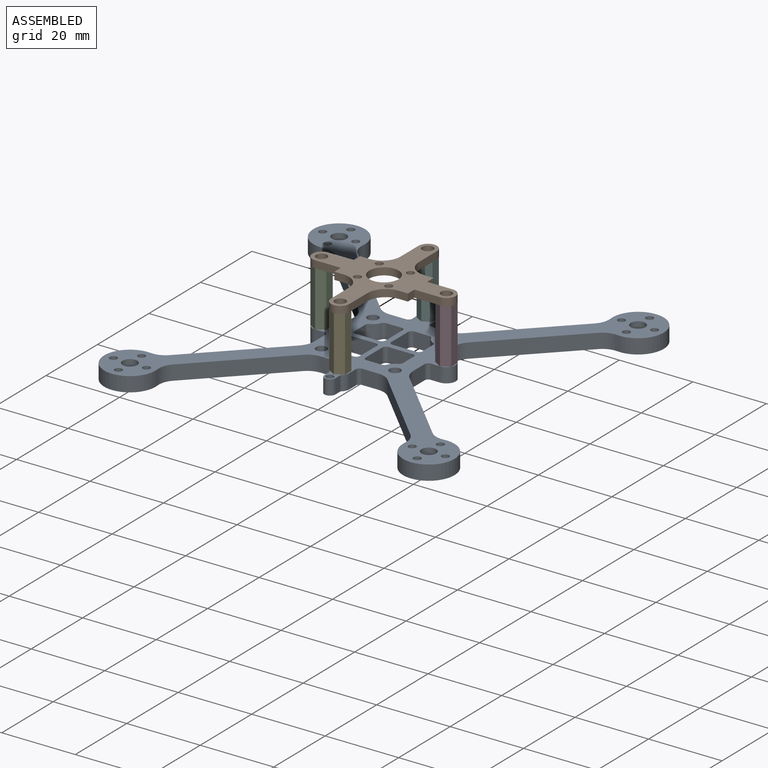
[diagram: assembled view]
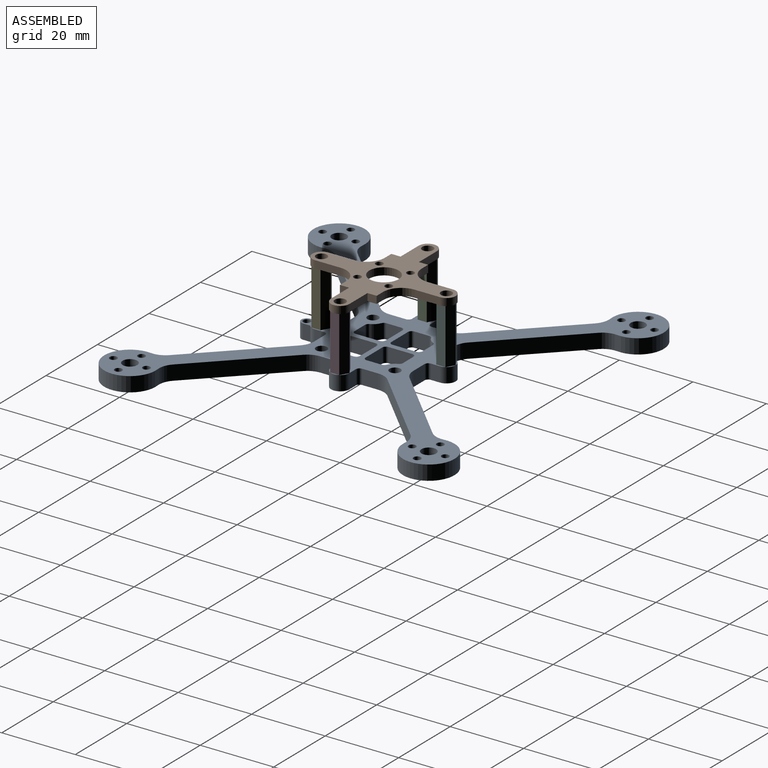
[diagram: assembled view, second angle]
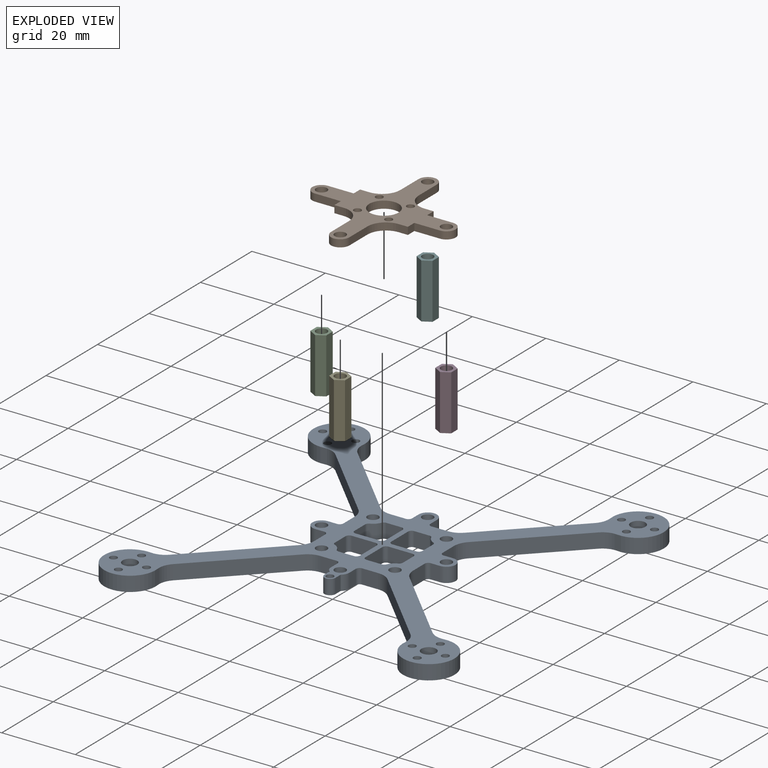
[diagram: exploded view]
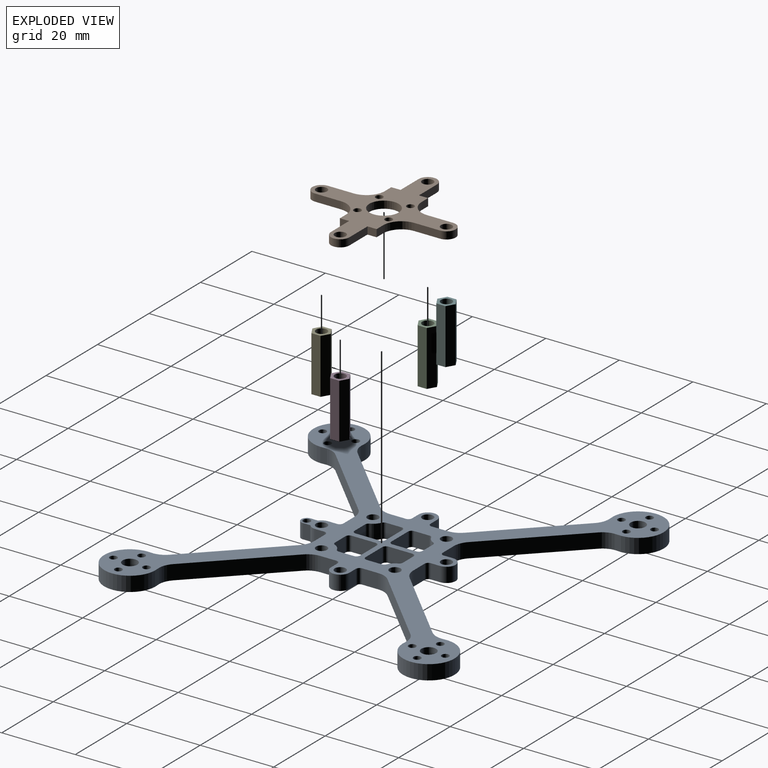
[diagram: exploded view, second angle]
ASSEMBLY  parts=6 mates=5
PART A: 131 faces, bbox 95.3x95.3x4 mm
  f0: plane 20.84x20.84mm, normal (-0.71,0.71,0), area 117.9mm2, adj f85,f86,f87,f90
  f1: plane 4.39x4mm, normal (0,1,0), area 17.6mm2, adj f85,f86,f87,f123
  f2: plane 4x2.5mm, normal (1,0,0), area 10mm2, adj f3,f85,f86,f123
  f3: cylinder r=2.5mm len=5mm, axis (0,0,-1), area 31.4mm2, adj f2,f4,f85,f86
  f4: plane 4x2.5mm, normal (-1,0,0), area 10mm2, adj f3,f85,f86,f124
  f5: plane 4.39x4mm, normal (0,1,0), area 17.6mm2, adj f85,f86,f88,f124
  f6: plane 20.84x20.84mm, normal (0.71,0.71,0), area 117.9mm2, adj f85,f86,f88,f98
  f7: cylinder r=7mm len=14mm, axis (0,0,-1), area 138.1mm2, adj f85,f86,f92,f98
  f8: plane 20.84x20.84mm, normal (-0.71,-0.71,0), area 117.9mm2, adj f85,f86,f92,f93
  f9: plane 4.39x4mm, normal (-1,0,0), area 17.6mm2, adj f85,f86,f93,f127
  f10: plane 4x2.5mm, normal (0,1,0), area 10mm2, adj f11,f85,f86,f127
  f11: cylinder r=2.5mm len=5mm, axis (0,0,-1), area 31.4mm2, adj f10,f12,f85,f86
  f12: plane 4x2.5mm, normal (0,-1,0), area 10mm2, adj f11,f85,f86,f128
  f13: plane 4.39x4mm, normal (-1,0,0), area 17.6mm2, adj f85,f86,f96,f128
  f14: plane 20.84x20.84mm, normal (-0.71,0.71,0), area 117.9mm2, adj f85,f86,f94,f96
  f15: cylinder r=7mm len=14mm, axis (0,0,-1), area 138.1mm2, adj f85,f86,f94,f95
  f16: plane 20.84x20.84mm, normal (0.71,-0.71,0), area 117.9mm2, adj f85,f86,f95,f102
  f17: plane 4.39x4mm, normal (0,-1,0), area 17.6mm2, adj f85,f86,f102,f129
  f18: plane 4x2.5mm, normal (-1,0,0), area 10mm2, adj f19,f85,f86,f129
  f19: cylinder r=2.5mm len=4mm, axis (0,0,-1), area 9.3mm2, adj f18,f20,f85,f86
  f20: plane 4x2mm, normal (-1,0,0), area 8mm2, adj f19,f21,f85,f86
  f21: cylinder r=1.5mm len=4mm, axis (0,0,-1), area 18.9mm2, adj f20,f22,f85,f86
  f22: plane 4x2mm, normal (1,0,0), area 8mm2, adj f21,f23,f85,f86
  f23: cylinder r=2.5mm len=4mm, axis (0,0,-1), area 9.3mm2, adj f22,f24,f85,f86
  f24: plane 4x2.5mm, normal (1,0,0), area 10mm2, adj f23,f85,f86,f130
  f25: plane 4.39x4mm, normal (0,-1,0), area 17.6mm2, adj f85,f86,f99,f130
  f26: plane 20.84x20.84mm, normal (-0.71,-0.71,0), area 117.9mm2, adj f85,f86,f99,f100
  f27: cylinder r=7mm len=14mm, axis (0,0,-1), area 138.1mm2, adj f85,f86,f100,f101
  f28: plane 20.84x20.84mm, normal (0.71,0.71,0), area 117.9mm2, adj f85,f86,f97,f101
  f29: plane 4.39x4mm, normal (1,0,0), area 17.6mm2, adj f85,f86,f97,f126
  f30: plane 4x2.5mm, normal (0,-1,0), area 10mm2, adj f31,f85,f86,f126
  f31: cylinder r=2.5mm len=5mm, axis (0,0,-1), area 31.4mm2, adj f30,f32,f85,f86
  f32: plane 4x2.5mm, normal (0,1,0), area 10mm2, adj f31,f85,f86,f125
  f33: plane 4.39x4mm, normal (1,0,0), area 17.6mm2, adj f85,f86,f91,f125
  f34: plane 20.84x20.84mm, normal (0.71,-0.71,0), area 117.9mm2, adj f85,f86,f89,f91
  f35: plane 4.1x4mm, normal (0,1,0), area 16.4mm2, adj f85,f86,f109,f111
  f36: plane 6.5x4mm, normal (1,0,0), area 26mm2, adj f85,f86,f109,f118
  f37: plane 6.5x4mm, normal (0,-1,0), area 26mm2, adj f85,f86,f112,f118
  f38: plane 4.1x4mm, normal (-1,0,0), area 16.4mm2, adj f85,f86,f112,f114
  f39: plane 4.1x4mm, normal (1,0,0), area 16.4mm2, adj f85,f86,f105,f107
  f40: plane 6.5x4mm, normal (0,-1,0), area 26mm2, adj f85,f86,f105,f117
  f41: plane 6.5x4mm, normal (-1,0,0), area 26mm2, adj f85,f86,f108,f117
  f42: plane 4.1x4mm, normal (0,1,0), area 16.4mm2, adj f85,f86,f108,f110
  f43: plane 4.1x4mm, normal (0,-1,0), area 16.4mm2, adj f85,f86,f103,f120
  f44: plane 6.5x4mm, normal (-1,0,0), area 26mm2, adj f85,f86,f103,f115
  f45: plane 6.5x4mm, normal (0,1,0), area 26mm2, adj f85,f86,f106,f115
  f46: plane 4.1x4mm, normal (1,0,0), area 16.4mm2, adj f85,f86,f106,f119
  f47: plane 6.5x4mm, normal (1,0,0), area 26mm2, adj f85,f86,f104,f116
  f48: plane 4.1x4mm, normal (0,-1,0), area 16.4mm2, adj f85,f86,f104,f122
  f49: cylinder r=3.5mm len=4mm, axis (0,0,-1), area 10.8mm2, adj f85,f86,f121,f122
  f50: plane 4.1x4mm, normal (-1,0,0), area 16.4mm2, adj f85,f86,f113,f121
  f51: cylinder r=1.5mm len=4mm, axis (0,0,-1), area 37.7mm2, adj f85,f86
  f52: cylinder r=1.5mm len=4mm, axis (0,0,-1), area 37.7mm2, adj f85,f86
  f53: cylinder r=1mm len=4mm, axis (0,0,-1), area 25.1mm2, adj f85,f86
  f54: cylinder r=1mm len=4mm, axis (0,0,-1), area 25.1mm2, adj f85,f86
  f55: cylinder r=2mm len=4mm, axis (0,0,-1), area 50.3mm2, adj f85,f86
  f56: cylinder r=1mm len=4mm, axis (0,0,-1), area 25.1mm2, adj f85,f86
  f57: cylinder r=1mm len=4mm, axis (0,0,-1), area 25.1mm2, adj f85,f86
  f58: cylinder r=1mm len=4mm, axis (0,0,-1), area 25.1mm2, adj f85,f86
  f59: cylinder r=1mm len=4mm, axis (0,0,-1), area 25.1mm2, adj f85,f86
  f60: cylinder r=2mm len=4mm, axis (0,0,-1), area 50.3mm2, adj f85,f86
  f61: cylinder r=1mm len=4mm, axis (0,0,-1), area 25.1mm2, adj f85,f86
  f62: cylinder r=1mm len=4mm, axis (0,0,-1), area 25.1mm2, adj f85,f86
  f63: cylinder r=1mm len=4mm, axis (0,0,-1), area 25.1mm2, adj f85,f86
  f64: cylinder r=1mm len=4mm, axis (0,0,-1), area 25.1mm2, adj f85,f86
  f65: cylinder r=1mm len=4mm, axis (0,0,-1), area 25.1mm2, adj f85,f86
  f66: cylinder r=2mm len=4mm, axis (0,0,-1), area 50.3mm2, adj f85,f86
  f67: cylinder r=1mm len=4mm, axis (0,0,-1), area 25.1mm2, adj f85,f86
  f68: cylinder r=1mm len=4mm, axis (0,0,-1), area 25.1mm2, adj f85,f86
  f69: cylinder r=1.5mm len=4mm, axis (0,0,-1), area 37.7mm2, adj f85,f86
  f70: cylinder r=1mm len=4mm, axis (0,0,-1), area 25.1mm2, adj f85,f86
  f71: cylinder r=1mm len=4mm, axis (0,0,-1), area 25.1mm2, adj f85,f86
  f72: cylinder r=2mm len=4mm, axis (0,0,-1), area 50.3mm2, adj f85,f86
  f73: cylinder r=1mm len=4mm, axis (0,0,-1), area 25.1mm2, adj f85,f86
  f74: cylinder r=1mm len=4mm, axis (0,0,-1), area 25.1mm2, adj f85,f86
  f75: cylinder r=7mm len=14mm, axis (0,0,-1), area 138.1mm2, adj f85,f86,f89,f90
  f76: cylinder r=1.5mm len=4mm, axis (0,0,-1), area 37.7mm2, adj f85,f86
  f77: cylinder r=1.5mm len=4mm, axis (0,0,-1), area 37.7mm2, adj f85,f86
  f78: cylinder r=1.5mm len=4mm, axis (0,0,-1), area 37.7mm2, adj f85,f86
  f79: cylinder r=1.5mm len=4mm, axis (0,0,-1), area 37.7mm2, adj f85,f86
  f80: cylinder r=3.5mm len=4mm, axis (0,0,-1), area 10.8mm2, adj f85,f86,f111,f114
  f81: cylinder r=3.5mm len=4mm, axis (0,0,-1), area 10.8mm2, adj f85,f86,f107,f110
  f82: cylinder r=3.5mm len=4mm, axis (0,0,-1), area 10.8mm2, adj f85,f86,f119,f120
  f83: plane 6.5x4mm, normal (0,1,0), area 26mm2, adj f85,f86,f113,f116
  f84: cylinder r=1.5mm len=4mm, axis (0,0,-1), area 37.7mm2, adj f85,f86
  f85: plane 95.32x95.32mm, normal (0,0,1), area 1707.5mm2, adj f0,f1,f2,f3,f4,f5,f6,f7
  f86: plane 95.32x95.32mm, normal (0,0,-1), area 1707.5mm2, adj f0,f1,f2,f3,f4,f5,f6,f7
  f87: cylinder r=5mm len=4mm, axis (0,0,-1), area 15.7mm2, adj f0,f1,f85,f86
  f88: cylinder r=5mm len=4mm, axis (0,0,1), area 15.7mm2, adj f5,f6,f85,f86
  f89: cylinder r=5mm len=4.09mm, axis (0,0,-1), area 17.9mm2, adj f34,f75,f85,f86
  f90: cylinder r=5mm len=4.09mm, axis (0,0,-1), area 17.9mm2, adj f0,f75,f85,f86
  f91: cylinder r=5mm len=4mm, axis (0,0,1), area 15.7mm2, adj f33,f34,f85,f86
  f92: cylinder r=5mm len=4.09mm, axis (0,0,-1), area 17.9mm2, adj f7,f8,f85,f86
  f93: cylinder r=5mm len=4mm, axis (0,0,1), area 15.7mm2, adj f8,f9,f85,f86
  f94: cylinder r=5mm len=4.09mm, axis (0,0,-1), area 17.9mm2, adj f14,f15,f85,f86
  f95: cylinder r=5mm len=4.09mm, axis (0,0,-1), area 17.9mm2, adj f15,f16,f85,f86
  f96: cylinder r=5mm len=4mm, axis (0,0,1), area 15.7mm2, adj f13,f14,f85,f86
  f97: cylinder r=5mm len=4mm, axis (0,0,1), area 15.7mm2, adj f28,f29,f85,f86
  f98: cylinder r=5mm len=4.09mm, axis (0,0,-1), area 17.9mm2, adj f6,f7,f85,f86
  f99: cylinder r=5mm len=4mm, axis (0,0,1), area 15.7mm2, adj f25,f26,f85,f86
  f100: cylinder r=5mm len=4.09mm, axis (0,0,-1), area 17.9mm2, adj f26,f27,f85,f86
  f101: cylinder r=5mm len=4.09mm, axis (0,0,-1), area 17.9mm2, adj f27,f28,f85,f86
  f102: cylinder r=5mm len=4mm, axis (0,0,-1), area 15.7mm2, adj f16,f17,f85,f86
  f103: cylinder r=1mm len=4mm, axis (0,0,1), area 6.3mm2, adj f43,f44,f85,f86
  f104: cylinder r=1mm len=4mm, axis (0,0,-1), area 6.3mm2, adj f47,f48,f85,f86
  f105: cylinder r=1mm len=4mm, axis (0,0,1), area 6.3mm2, adj f39,f40,f85,f86
  f106: cylinder r=1mm len=4mm, axis (0,0,-1), area 6.3mm2, adj f45,f46,f85,f86
  f107: cylinder r=1mm len=4mm, axis (0,0,-1), area 4.7mm2, adj f39,f81,f85,f86
  f108: cylinder r=1mm len=4mm, axis (0,0,-1), area 6.3mm2, adj f41,f42,f85,f86
  f109: cylinder r=1mm len=4mm, axis (0,0,1), area 6.3mm2, adj f35,f36,f85,f86
  f110: cylinder r=1mm len=4mm, axis (0,0,-1), area 4.7mm2, adj f42,f81,f85,f86
  f111: cylinder r=1mm len=4mm, axis (0,0,-1), area 4.7mm2, adj f35,f80,f85,f86
  f112: cylinder r=1mm len=4mm, axis (0,0,-1), area 6.3mm2, adj f37,f38,f85,f86
  f113: cylinder r=1mm len=4mm, axis (0,0,1), area 6.3mm2, adj f50,f83,f85,f86
  f114: cylinder r=1mm len=4mm, axis (0,0,-1), area 4.7mm2, adj f38,f80,f85,f86
  f115: cylinder r=1mm len=4mm, axis (0,0,-1), area 6.3mm2, adj f44,f45,f85,f86
  f116: cylinder r=1mm len=4mm, axis (0,0,1), area 6.3mm2, adj f47,f83,f85,f86
  f117: cylinder r=1mm len=4mm, axis (0,0,1), area 6.3mm2, adj f40,f41,f85,f86
  f118: cylinder r=1mm len=4mm, axis (0,0,-1), area 6.3mm2, adj f36,f37,f85,f86
  f119: cylinder r=1mm len=4mm, axis (0,0,-1), area 4.7mm2, adj f46,f82,f85,f86
  f120: cylinder r=1mm len=4mm, axis (0,0,-1), area 4.7mm2, adj f43,f82,f85,f86
  f121: cylinder r=1mm len=4mm, axis (0,0,-1), area 4.7mm2, adj f49,f50,f85,f86
  f122: cylinder r=1mm len=4mm, axis (0,0,-1), area 4.7mm2, adj f48,f49,f85,f86
  f123: cylinder r=1mm len=4mm, axis (0,0,1), area 6.3mm2, adj f1,f2,f85,f86
  f124: cylinder r=1mm len=4mm, axis (0,0,-1), area 6.3mm2, adj f4,f5,f85,f86
  f125: cylinder r=1mm len=4mm, axis (0,0,-1), area 6.3mm2, adj f32,f33,f85,f86
  f126: cylinder r=1mm len=4mm, axis (0,0,1), area 6.3mm2, adj f29,f30,f85,f86
  f127: cylinder r=1mm len=4mm, axis (0,0,-1), area 6.3mm2, adj f9,f10,f85,f86
  f128: cylinder r=1mm len=4mm, axis (0,0,1), area 6.3mm2, adj f12,f13,f85,f86
  f129: cylinder r=1mm len=4mm, axis (0,0,-1), area 6.3mm2, adj f17,f18,f85,f86
  f130: cylinder r=1mm len=4mm, axis (0,0,1), area 6.3mm2, adj f24,f25,f85,f86
PART B: 35 faces, bbox 39x39x2 mm
  f0: plane 7x2mm, normal (1,0,0), area 14mm2, adj f1,f31,f33,f34
  f1: cylinder r=2.5mm len=5mm, axis (0,0,-1), area 15.7mm2, adj f0,f2,f33,f34
  f2: plane 7x2mm, normal (-1,0,0), area 14mm2, adj f1,f3,f33,f34
  f3: cylinder r=5mm len=5mm, axis (0,0,-1), area 15.7mm2, adj f2,f4,f33,f34
  f4: plane 2.5x2mm, normal (0,1,0), area 5mm2, adj f3,f5,f33,f34
  f5: plane 2.5x2mm, normal (-1,0,0), area 5mm2, adj f4,f6,f33,f34
  f6: plane 7x2mm, normal (0,1,0), area 14mm2, adj f5,f7,f33,f34
  f7: cylinder r=2.5mm len=5mm, axis (0,0,-1), area 15.7mm2, adj f6,f8,f33,f34
  f8: plane 7x2mm, normal (0,-1,0), area 14mm2, adj f7,f9,f33,f34
  f9: plane 2.5x2mm, normal (-1,0,0), area 5mm2, adj f8,f10,f33,f34
  f10: plane 2.5x2mm, normal (0,-1,0), area 5mm2, adj f9,f11,f33,f34
  f11: cylinder r=5mm len=5mm, axis (0,0,-1), area 15.7mm2, adj f10,f12,f33,f34
  f12: plane 7x2mm, normal (-1,0,0), area 14mm2, adj f11,f13,f33,f34
  f13: cylinder r=2.5mm len=5mm, axis (0,0,-1), area 15.7mm2, adj f12,f14,f33,f34
  f14: plane 7x2mm, normal (1,0,0), area 14mm2, adj f13,f15,f33,f34
  f15: cylinder r=5mm len=5mm, axis (0,0,-1), area 15.7mm2, adj f14,f16,f33,f34
  f16: plane 2.5x2mm, normal (0,-1,0), area 5mm2, adj f15,f17,f33,f34
  f17: plane 2.5x2mm, normal (1,0,0), area 5mm2, adj f16,f18,f33,f34
  f18: plane 7x2mm, normal (0,-1,0), area 14mm2, adj f17,f19,f33,f34
  f19: cylinder r=2.5mm len=5mm, axis (0,0,-1), area 15.7mm2, adj f18,f20,f33,f34
  f20: plane 7x2mm, normal (0,1,0), area 14mm2, adj f19,f21,f33,f34
  f21: plane 2.5x2mm, normal (1,0,0), area 5mm2, adj f20,f22,f33,f34
  f22: plane 2.5x2mm, normal (0,1,0), area 5mm2, adj f21,f31,f33,f34
  f23: cylinder r=1mm len=2mm, axis (0,0,-1), area 12.6mm2, adj f33,f34
  f24: cylinder r=1mm len=2mm, axis (0,0,-1), area 12.6mm2, adj f33,f34
  f25: cylinder r=1mm len=2mm, axis (0,0,-1), area 12.6mm2, adj f33,f34
  f26: cylinder r=4mm len=8mm, axis (0,0,-1), area 50.3mm2, adj f33,f34
  f27: cylinder r=1.5mm len=3mm, axis (0,0,-1), area 18.8mm2, adj f33,f34
  f28: cylinder r=1.5mm len=3mm, axis (0,0,-1), area 18.8mm2, adj f33,f34
  f29: cylinder r=1.5mm len=3mm, axis (0,0,-1), area 18.8mm2, adj f33,f34
  f30: cylinder r=1.5mm len=3mm, axis (0,0,-1), area 18.8mm2, adj f33,f34
  f31: cylinder r=5mm len=5mm, axis (0,0,-1), area 15.7mm2, adj f0,f22,f33,f34
  f32: cylinder r=1mm len=2mm, axis (0,0,-1), area 12.6mm2, adj f33,f34
  f33: plane 39x39mm, normal (0,0,1), area 359.6mm2, adj f0,f1,f2,f3,f4,f5,f6,f7
  f34: plane 39x39mm, normal (0,0,-1), area 359.6mm2, adj f0,f1,f2,f3,f4,f5,f6,f7
PART C: 9 faces, bbox 4.3x5x15 mm
  f0: plane 15x2.5mm, normal (-1,0,0), area 37.5mm2, adj f1,f5,f7,f8
  f1: plane 15x2.17mm, normal (-0.5,-0.87,0), area 37.5mm2, adj f0,f2,f7,f8
  f2: plane 15x2.17mm, normal (0.5,-0.87,0), area 37.5mm2, adj f1,f3,f7,f8
  f3: plane 15x2.5mm, normal (1,0,0), area 37.5mm2, adj f2,f4,f7,f8
  f4: plane 15x2.17mm, normal (0.5,0.87,0), area 37.5mm2, adj f3,f5,f7,f8
  f5: plane 15x2.17mm, normal (-0.5,0.87,0), area 37.5mm2, adj f0,f4,f7,f8
  f6: cylinder r=1.5mm len=15mm, axis (0,0,-1), area 141.4mm2, adj f7,f8
  f7: plane 5x4.33mm, normal (0,0,1), area 9.2mm2, adj f0,f1,f2,f3,f4,f5,f6
  f8: plane 5x4.33mm, normal (0,0,-1), area 9.2mm2, adj f0,f1,f2,f3,f4,f5,f6
PART D: same geometry as C
PART E: same geometry as C
PART F: same geometry as C
PLACE A t=(0,0,-19)mm
PLACE B at identity
PLACE C t=(-17,0,-15)mm
PLACE D t=(17,0,-15)mm
PLACE E t=(0,-17,-15)mm
PLACE F t=(0,17,-15)mm
MATE fastened C.f6 <-> B.f7  axis (0,0,-1) through (-17,0,0)mm
MATE fastened A.f19 <-> E.f6  axis (0,0,-1) through (0,-17,-15)mm
MATE fastened F.f6 <-> B.f1  axis (0,0,-1) through (0,17,0)mm
MATE fastened E.f6 <-> B.f13  axis (0,0,-1) through (0,-17,0)mm
MATE fastened D.f6 <-> B.f19  axis (0,0,1) through (17,0,0)mm
